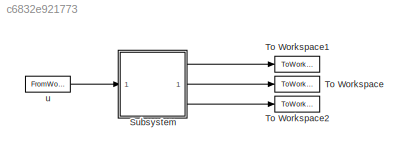
MODEL slx_c6832e921773
KIND model
CONFIG AbsTol = auto
CONFIG EnableMultiTasking = off
CONFIG FixedStep = auto
CONFIG MaxStep = auto
CONFIG MinStep = auto
CONFIG RelTol = 1e-3
CONFIG SampleTimeConstraint = Unconstrained
CONFIG SolverName = VariableStepAuto
CONFIG StartTime = 0.0
CONFIG StopTime = 50
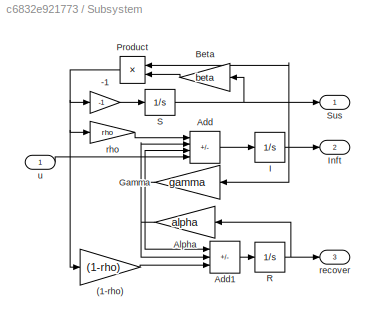
BLOCK [SubSystem] Subsystem
BLOCK [Gain] Subsystem/(1-rho)
  Gain = (1-rho)
BLOCK [Gain] Subsystem/-1
  Gain = -1
BLOCK [Sum] Subsystem/Add
  IconShape = rectangular
  Inputs = ++-+
BLOCK [Sum] Subsystem/Add1
  IconShape = rectangular
  Inputs = +-+
BLOCK [Gain] Subsystem/Alpha
  Gain = alpha
BLOCK [Gain] Subsystem/Beta
  Gain = beta
BLOCK [Gain] Subsystem/Gamma
  Gain = gamma
BLOCK [Integrator] Subsystem/I
  InitialCondition = I0
BLOCK [Outport] Subsystem/Inft
  Port = 2
BLOCK [Product] Subsystem/Product
BLOCK [Integrator] Subsystem/R
  InitialCondition = R0
BLOCK [Integrator] Subsystem/S
  InitialCondition = S0
BLOCK [Outport] Subsystem/Sus
BLOCK [Outport] Subsystem/recover
  Port = 3
BLOCK [Gain] Subsystem/rho
  Gain = rho
BLOCK [Inport] Subsystem/u
BLOCK [ToWorkspace] To Workspace
  FixptAsFi = on
  MaxDataPoints = inf
  SampleTime = -1
  SaveFormat = Timeseries
  VariableName = inft
BLOCK [ToWorkspace] To Workspace1
  FixptAsFi = on
  MaxDataPoints = inf
  SampleTime = -1
  SaveFormat = Timeseries
  VariableName = sus
BLOCK [ToWorkspace] To Workspace2
  FixptAsFi = on
  MaxDataPoints = inf
  SampleTime = -1
  SaveFormat = Timeseries
  VariableName = recover
BLOCK [FromWorkspace] u
  SampleTime = 7
  VariableName = u
LINE Subsystem/(1-rho):1 -> Subsystem/Add1:3
LINE Subsystem/-1:1 -> Subsystem/S:1
LINE Subsystem/Add1:1 -> Subsystem/R:1
LINE Subsystem/Add:1 -> Subsystem/I:1
NET Subsystem/Alpha:1 -> Subsystem/Add1:2, Subsystem/Add:2
LINE Subsystem/Beta:1 -> Subsystem/Product:2
NET Subsystem/Gamma:1 -> Subsystem/Add1:1, Subsystem/Add:3
NET Subsystem/I:1 -> Subsystem/Gamma:1, Subsystem/Inft:1, Subsystem/Product:1
NET Subsystem/Product:1 -> Subsystem/(1-rho):1, Subsystem/-1:1, Subsystem/rho:1
NET Subsystem/R:1 -> Subsystem/Alpha:1, Subsystem/recover:1
NET Subsystem/S:1 -> Subsystem/Beta:1, Subsystem/Sus:1
LINE Subsystem/rho:1 -> Subsystem/Add:1
LINE Subsystem/u:1 -> Subsystem/Add:4
LINE Subsystem:1 -> To Workspace1:1
LINE Subsystem:2 -> To Workspace:1
LINE Subsystem:3 -> To Workspace2:1
LINE u:1 -> Subsystem:1
note: NET lines group one-source signal fan-out (src -> all destinations, sorted); 1:1 wires keep LINE
